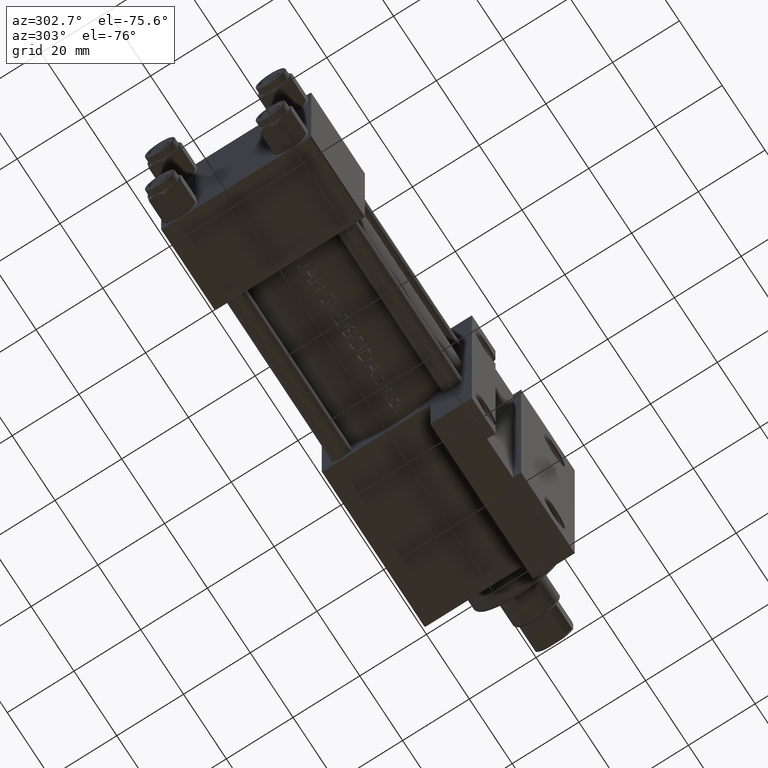
[diagram: clean part render]
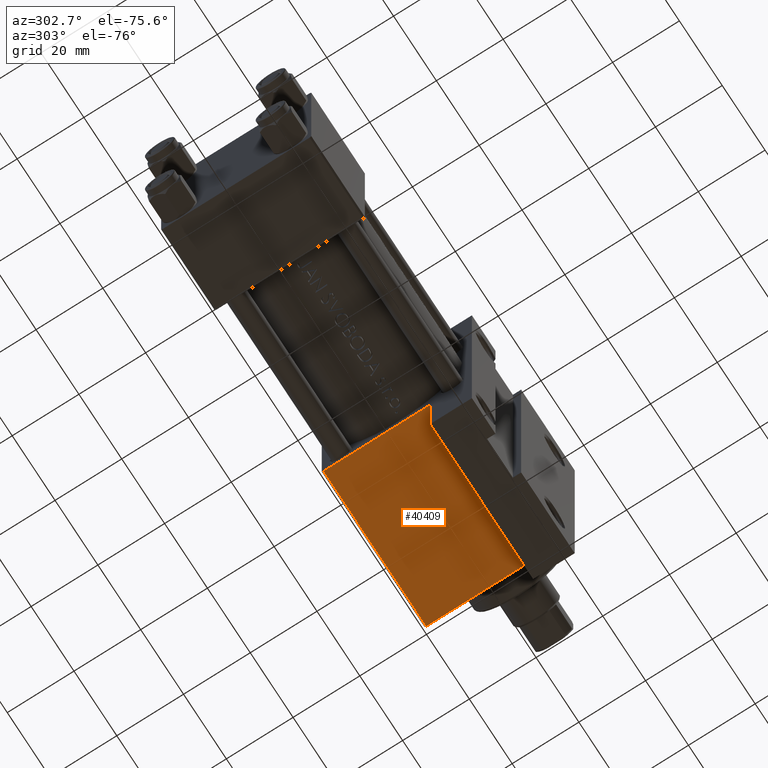
[diagram: same view with one face highlighted and labeled with its STEP entity id]
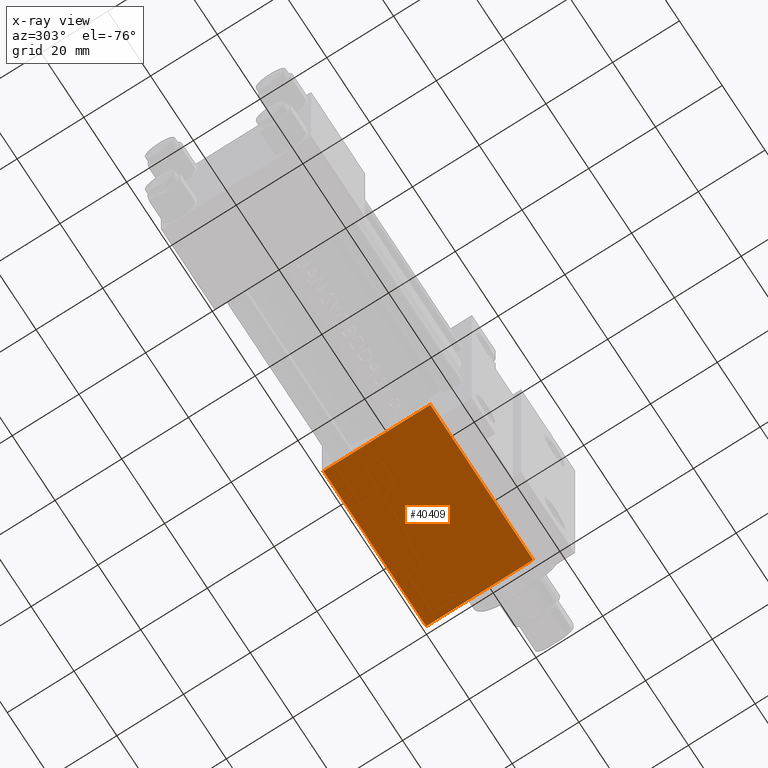
[diagram: x-ray of the same camera — body ghosted, the highlighted face saturated]
A machine part, auxiliary view. The second image highlights one B-rep face of the part: STEP entity #40409.
The next image is the same camera in x-ray: the body ghosted, the highlighted face saturated — about 0% of this face is hidden behind the body in this view.
In plain terms, the highlighted planar face has unit normal (0, 0, -1).
Its self-contained STEP definition (entity closure, byte-faithful):
#1304 = LINE ( 'NONE', #4436, #30091 ) ;
#1872 = CARTESIAN_POINT ( 'NONE',  ( 122.9999999999999858, 22.49999999999999289, -9.999999999999998224 ) ) ;
#2703 = CARTESIAN_POINT ( 'NONE',  ( 75.00000000000001421, 22.50000000000000000, -9.999999999999998224 ) ) ;
#4436 = CARTESIAN_POINT ( 'NONE',  ( 123.0000000000000142, 22.50000000000000355, 22.50000000000000355 ) ) ;
#4582 = VECTOR ( 'NONE', #6034, 1000.000000000000000 ) ;
#6034 = DIRECTION ( 'NONE',  ( 1.000000000000000000, 0.000000000000000000, 0.000000000000000000 ) ) ;
#6605 = VERTEX_POINT ( 'NONE', #1872 ) ;
#6903 = ORIENTED_EDGE ( 'NONE', *, *, #8197, .T. ) ;
#8197 = EDGE_CURVE ( 'NONE', #6605, #39035, #24647, .T. ) ;
#9101 = VECTOR ( 'NONE', #42742, 1000.000000000000000 ) ;
#9307 = VERTEX_POINT ( 'NONE', #40209 ) ;
#11144 = ORIENTED_EDGE ( 'NONE', *, *, #14695, .F. ) ;
#11235 = DIRECTION ( 'NONE',  ( 0.000000000000000000, -0.000000000000000000, 1.000000000000000000 ) ) ;
#11832 = VECTOR ( 'NONE', #17650, 1000.000000000000000 ) ;
#12282 = EDGE_LOOP ( 'NONE', ( #11144, #46749, #33821, #6903 ) ) ;
#13307 = LINE ( 'NONE', #31876, #9101 ) ;
#14620 = PLANE ( 'NONE',  #19853 ) ;
#14695 = EDGE_CURVE ( 'NONE', #28425, #39035, #13307, .T. ) ;
#16647 = CARTESIAN_POINT ( 'NONE',  ( 123.0000000000000142, 22.50000000000000355, 21.99999999999998934 ) ) ;
#17650 = DIRECTION ( 'NONE',  ( -1.000000000000000000, 1.445602896647340149E-16, -0.000000000000000000 ) ) ;
#18471 = FACE_OUTER_BOUND ( 'NONE', #12282, .T. ) ;
#19853 = AXIS2_PLACEMENT_3D ( 'NONE', #29094, #33431, #11235 ) ;
#21731 = EDGE_CURVE ( 'NONE', #28425, #9307, #41996, .T. ) ;
#24132 = EDGE_CURVE ( 'NONE', #9307, #6605, #1304, .T. ) ;
#24647 = LINE ( 'NONE', #2703, #11832 ) ;
#28425 = VERTEX_POINT ( 'NONE', #39791 ) ;
#29094 = CARTESIAN_POINT ( 'NONE',  ( 123.0000000000000142, 22.50000000000000355, 22.50000000000000355 ) ) ;
#30091 = VECTOR ( 'NONE', #37266, 1000.000000000000000 ) ;
#31876 = CARTESIAN_POINT ( 'NONE',  ( 75.00000000000001421, 22.50000000000000355, 22.50000000000000355 ) ) ;
#33431 = DIRECTION ( 'NONE',  ( -0.000000000000000000, 1.000000000000000000, 0.000000000000000000 ) ) ;
#33821 = ORIENTED_EDGE ( 'NONE', *, *, #24132, .T. ) ;
#37266 = DIRECTION ( 'NONE',  ( 0.000000000000000000, 0.000000000000000000, -1.000000000000000000 ) ) ;
#39035 = VERTEX_POINT ( 'NONE', #42435 ) ;
#39791 = CARTESIAN_POINT ( 'NONE',  ( 75.00000000000001421, 22.50000000000000355, 21.99999999999998934 ) ) ;
#40209 = CARTESIAN_POINT ( 'NONE',  ( 123.0000000000000142, 22.50000000000000355, 21.99999999999998934 ) ) ;
#40409 = ADVANCED_FACE ( 'NONE', ( #18471 ), #14620, .T. ) ;
#41996 = LINE ( 'NONE', #16647, #4582 ) ;
#42435 = CARTESIAN_POINT ( 'NONE',  ( 75.00000000000001421, 22.50000000000000355, -9.999999999999984013 ) ) ;
#42742 = DIRECTION ( 'NONE',  ( 0.000000000000000000, 0.000000000000000000, -1.000000000000000000 ) ) ;
#46749 = ORIENTED_EDGE ( 'NONE', *, *, #21731, .T. ) ;